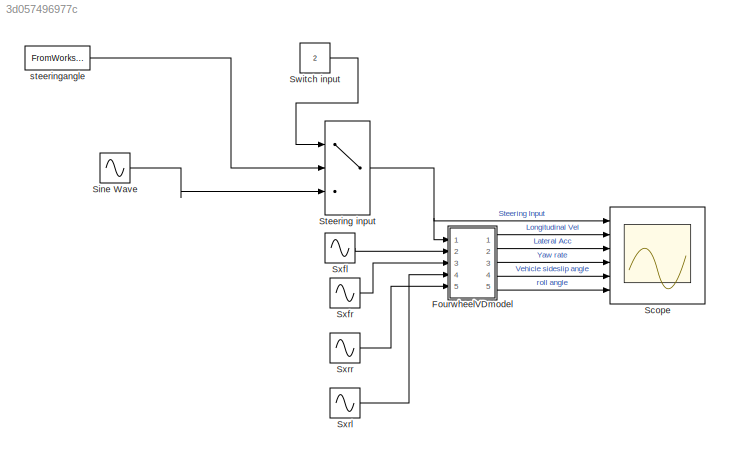
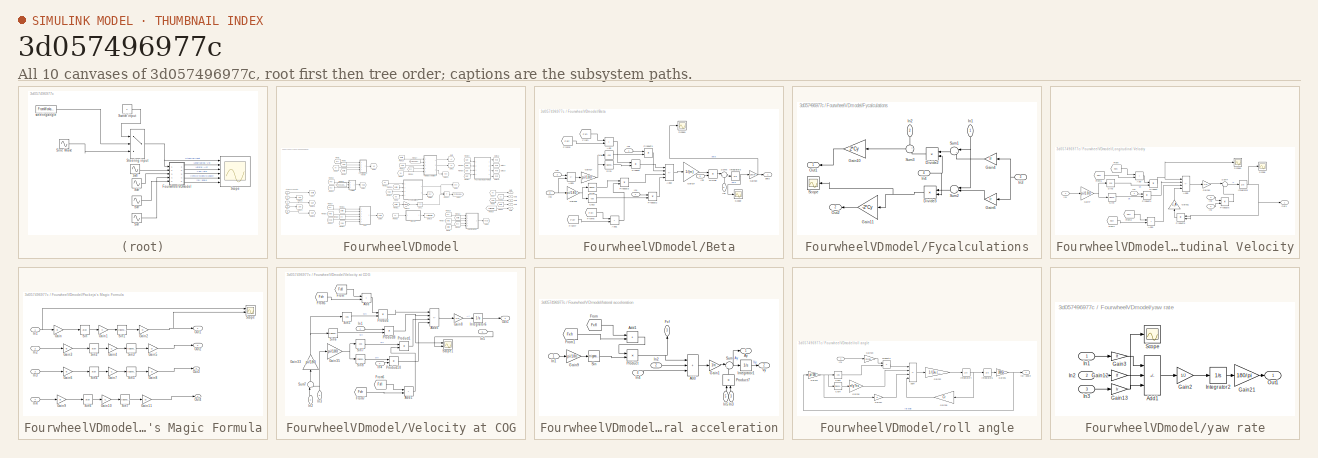
[diagram: thumbnail index - all 10 canvases of the model, root first then tree order]
MODEL slx_3d057496977c
KIND model
CONFIG AbsTol = auto
CONFIG EnableMultiTasking = off
CONFIG FixedStep = auto
CONFIG MaxStep = auto
CONFIG MinStep = auto
CONFIG RelTol = 1e-3
CONFIG SampleTimeConstraint = Unconstrained
CONFIG SolverName = VariableStepAuto
CONFIG StartTime = 0.0
CONFIG StopTime = 10
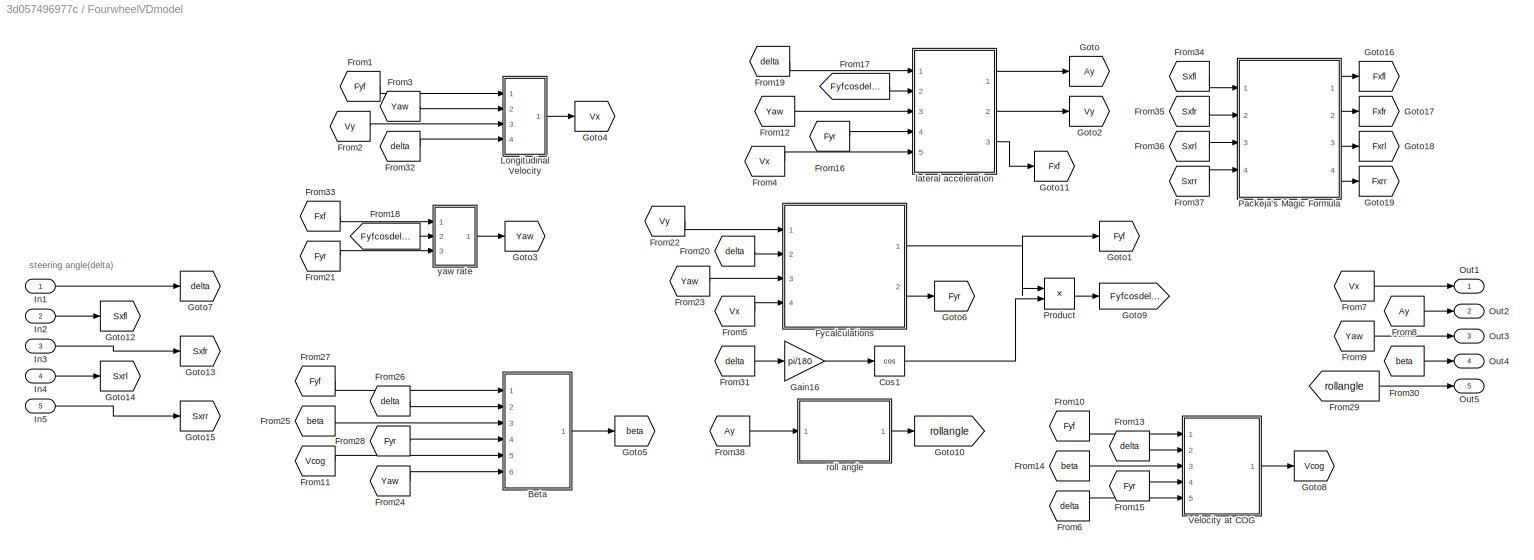
BLOCK [SubSystem] FourwheelVDmodel
  Ports = [5, 5]
  RequestExecContextInheritance = off
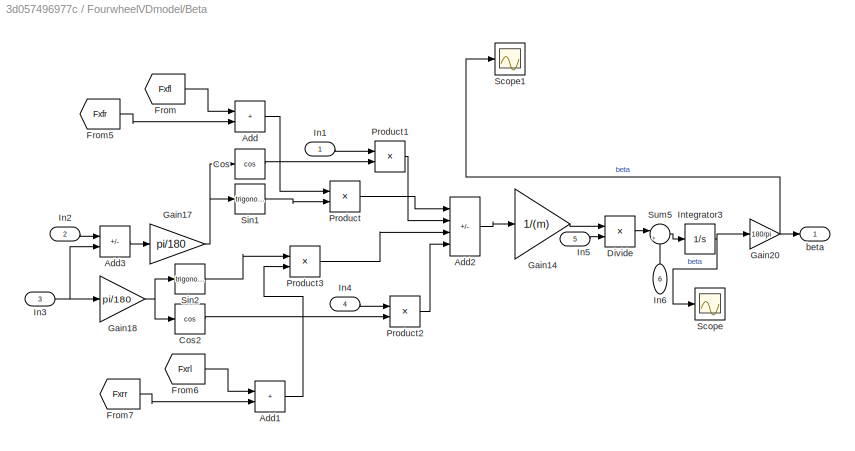
BLOCK [SubSystem] FourwheelVDmodel/Beta
  Ports = [6, 1]
  RequestExecContextInheritance = off
BLOCK [Sum] FourwheelVDmodel/Beta/Add
  IconShape = rectangular
  Ports = [2, 1]
BLOCK [Sum] FourwheelVDmodel/Beta/Add1
  IconShape = rectangular
  Ports = [2, 1]
BLOCK [Sum] FourwheelVDmodel/Beta/Add2
  IconShape = rectangular
  Inputs = ++-+
  Ports = [4, 1]
BLOCK [Sum] FourwheelVDmodel/Beta/Add3
  IconShape = rectangular
  Inputs = +-
  Ports = [2, 1]
BLOCK [Trigonometry] FourwheelVDmodel/Beta/Cos
  Operator = cos
  Ports = [1, 1]
BLOCK [Trigonometry] FourwheelVDmodel/Beta/Cos2
  Operator = cos
  Ports = [1, 1]
BLOCK [Product] FourwheelVDmodel/Beta/Divide
  Inputs = */
  Ports = [2, 1]
BLOCK [From] FourwheelVDmodel/Beta/From
  GotoTag = Fxfl
  TagVisibility = global
BLOCK [From] FourwheelVDmodel/Beta/From5
  GotoTag = Fxfr
  TagVisibility = global
BLOCK [From] FourwheelVDmodel/Beta/From6
  GotoTag = Fxrl
  TagVisibility = global
BLOCK [From] FourwheelVDmodel/Beta/From7
  GotoTag = Fxrr
  TagVisibility = global
BLOCK [Gain] FourwheelVDmodel/Beta/Gain14
  Gain = 1/(m)
BLOCK [Gain] FourwheelVDmodel/Beta/Gain17
  Gain = pi/180
BLOCK [Gain] FourwheelVDmodel/Beta/Gain18
  Gain = pi/180
BLOCK [Gain] FourwheelVDmodel/Beta/Gain20
  Gain = 180/pi
BLOCK [Inport] FourwheelVDmodel/Beta/In1
BLOCK [Inport] FourwheelVDmodel/Beta/In2
  Port = 2
BLOCK [Inport] FourwheelVDmodel/Beta/In3
  Port = 3
BLOCK [Inport] FourwheelVDmodel/Beta/In4
  Port = 4
BLOCK [Inport] FourwheelVDmodel/Beta/In5
  Port = 5
BLOCK [Inport] FourwheelVDmodel/Beta/In6
  NameLocation = right
  Port = 6
BLOCK [Integrator] FourwheelVDmodel/Beta/Integrator3
  Ports = [1, 1]
BLOCK [Product] FourwheelVDmodel/Beta/Product
  Ports = [2, 1]
BLOCK [Product] FourwheelVDmodel/Beta/Product1
  Ports = [2, 1]
BLOCK [Product] FourwheelVDmodel/Beta/Product2
  Ports = [2, 1]
BLOCK [Product] FourwheelVDmodel/Beta/Product3
  Ports = [2, 1]
BLOCK [Scope] FourwheelVDmodel/Beta/Scope
  Floating = off
  NumInputPorts = 1
  Ports = [1]
  ScopeSpecificationString = Simulink.scopes.TimeScopeBlockCfg('CurrentConfiguration', extmgr.ConfigurationSet(extmgr.Configuration('Core','General UI',true),extmgr.Configuration('Core','Source UI',true),extmgr.Configuration('Sources','WiredSimulink',true,'DataLoggingVariableName','ScopeData5'),extmgr.Configuration('Visuals','Time Domain',true,'SerializedDisplays',{struct('MinYLimReal','-1.06062','MaxYLimReal','0.73497','YLab...<+1690ch>
BLOCK [Scope] FourwheelVDmodel/Beta/Scope1
  Floating = off
  NumInputPorts = 1
  Ports = [1]
  ScopeSpecificationString = Simulink.scopes.TimeScopeBlockCfg('CurrentConfiguration', extmgr.ConfigurationSet(extmgr.Configuration('Core','General UI',true),extmgr.Configuration('Core','Source UI',true),extmgr.Configuration('Sources','WiredSimulink',true,'DataLoggingVariableName','ScopeData4'),extmgr.Configuration('Visuals','Time Domain',true,'SerializedDisplays',{struct('MinYLimReal','-12.23576','MaxYLimReal','13.15543','YL...<+1402ch>
BLOCK [Trigonometry] FourwheelVDmodel/Beta/Sin1
  Ports = [1, 1]
BLOCK [Trigonometry] FourwheelVDmodel/Beta/Sin2
  Ports = [1, 1]
BLOCK [Sum] FourwheelVDmodel/Beta/Sum5
  Inputs = |+-
  Ports = [2, 1]
BLOCK [Outport] FourwheelVDmodel/Beta/beta
BLOCK [Trigonometry] FourwheelVDmodel/Cos1
  Operator = cos
  Ports = [1, 1]
BLOCK [From] FourwheelVDmodel/From1
  GotoTag = Fyf
BLOCK [From] FourwheelVDmodel/From10
  GotoTag = Fyf
BLOCK [From] FourwheelVDmodel/From11
  GotoTag = Vcog
BLOCK [From] FourwheelVDmodel/From12
  GotoTag = Yaw
BLOCK [From] FourwheelVDmodel/From13
  GotoTag = delta
BLOCK [From] FourwheelVDmodel/From14
  GotoTag = beta
BLOCK [From] FourwheelVDmodel/From15
  GotoTag = Fyr
BLOCK [From] FourwheelVDmodel/From16
  GotoTag = Fyr
BLOCK [From] FourwheelVDmodel/From17
  GotoTag = Fyfcosdelta
  NameLocation = top
BLOCK [From] FourwheelVDmodel/From18
  GotoTag = Fyfcosdelta
  NameLocation = top
BLOCK [From] FourwheelVDmodel/From19
  GotoTag = delta
BLOCK [From] FourwheelVDmodel/From2
  GotoTag = Vy
BLOCK [From] FourwheelVDmodel/From20
  GotoTag = delta
BLOCK [From] FourwheelVDmodel/From21
  GotoTag = Fyr
BLOCK [From] FourwheelVDmodel/From22
  GotoTag = Vy
BLOCK [From] FourwheelVDmodel/From23
  GotoTag = Yaw
BLOCK [From] FourwheelVDmodel/From24
  GotoTag = Yaw
BLOCK [From] FourwheelVDmodel/From25
  GotoTag = beta
BLOCK [From] FourwheelVDmodel/From26
  GotoTag = delta
BLOCK [From] FourwheelVDmodel/From27
  GotoTag = Fyf
BLOCK [From] FourwheelVDmodel/From28
  GotoTag = Fyr
BLOCK [From] FourwheelVDmodel/From29
  GotoTag = rollangle
BLOCK [From] FourwheelVDmodel/From3
  GotoTag = Yaw
BLOCK [From] FourwheelVDmodel/From30
  GotoTag = beta
BLOCK [From] FourwheelVDmodel/From31
  GotoTag = delta
BLOCK [From] FourwheelVDmodel/From32
  GotoTag = delta
BLOCK [From] FourwheelVDmodel/From33
  GotoTag = Fxf
BLOCK [From] FourwheelVDmodel/From34
  GotoTag = Sxfl
  TagVisibility = global
BLOCK [From] FourwheelVDmodel/From35
  GotoTag = Sxfr
  TagVisibility = global
BLOCK [From] FourwheelVDmodel/From36
  GotoTag = Sxrl
  TagVisibility = global
BLOCK [From] FourwheelVDmodel/From37
  GotoTag = Sxrr
  TagVisibility = global
BLOCK [From] FourwheelVDmodel/From38
  GotoTag = Ay
BLOCK [From] FourwheelVDmodel/From4
  GotoTag = Vx
BLOCK [From] FourwheelVDmodel/From5
  GotoTag = Vx
BLOCK [From] FourwheelVDmodel/From6
  GotoTag = delta
BLOCK [From] FourwheelVDmodel/From7
  GotoTag = Vx
BLOCK [From] FourwheelVDmodel/From8
  GotoTag = Ay
BLOCK [From] FourwheelVDmodel/From9
  GotoTag = Yaw
BLOCK [SubSystem] FourwheelVDmodel/Fycalculations
  Ports = [4, 2]
  RequestExecContextInheritance = off
BLOCK [Product] FourwheelVDmodel/Fycalculations/Divide2
  Inputs = */
  NameLocation = top
  Ports = [2, 1]
BLOCK [Product] FourwheelVDmodel/Fycalculations/Divide3
  Inputs = */
  NameLocation = top
  Ports = [2, 1]
BLOCK [Gain] FourwheelVDmodel/Fycalculations/Gain10
  Gain = 2*Cy
  NameLocation = top
BLOCK [Gain] FourwheelVDmodel/Fycalculations/Gain11
  Gain = -2*Cy
  NameLocation = top
BLOCK [Gain] FourwheelVDmodel/Fycalculations/Gain4
  Gain = lf
  NameLocation = top
BLOCK [Gain] FourwheelVDmodel/Fycalculations/Gain6
  Gain = lr
  NameLocation = top
BLOCK [Inport] FourwheelVDmodel/Fycalculations/In1
  NameLocation = left
BLOCK [Inport] FourwheelVDmodel/Fycalculations/In2
  NameLocation = left
  Port = 2
BLOCK [Inport] FourwheelVDmodel/Fycalculations/In3
  Port = 3
BLOCK [Inport] FourwheelVDmodel/Fycalculations/In4
  Port = 4
BLOCK [Outport] FourwheelVDmodel/Fycalculations/Out1
BLOCK [Outport] FourwheelVDmodel/Fycalculations/Out2
  Port = 2
BLOCK [Scope] FourwheelVDmodel/Fycalculations/Scope
  Floating = off
  NameLocation = top
  NumInputPorts = 1
  Ports = [1]
  ScopeSpecificationString = Simulink.scopes.TimeScopeBlockCfg('CurrentConfiguration', extmgr.ConfigurationSet(extmgr.Configuration('Core','General UI',true),extmgr.Configuration('Core','Source UI',true),extmgr.Configuration('Sources','WiredSimulink',true,'DataLoggingVariableName','ScopeData3'),extmgr.Configuration('Visuals','Time Domain',true,'SerializedDisplays',{struct('MinYLimReal','-6.2168','MaxYLimReal','6.14245','YLabe...<+1397ch>
BLOCK [Sum] FourwheelVDmodel/Fycalculations/Sum1
  Inputs = |++
  NameLocation = top
  Ports = [2, 1]
BLOCK [Sum] FourwheelVDmodel/Fycalculations/Sum2
  Inputs = |+-
  NameLocation = top
  Ports = [2, 1]
BLOCK [Sum] FourwheelVDmodel/Fycalculations/Sum3
  Inputs = +-
  NameLocation = top
  Ports = [2, 1]
BLOCK [Gain] FourwheelVDmodel/Gain16
  Gain = pi/180
BLOCK [Goto] FourwheelVDmodel/Goto
  GotoTag = Ay
BLOCK [Goto] FourwheelVDmodel/Goto1
  GotoTag = Fyf
BLOCK [Goto] FourwheelVDmodel/Goto10
  GotoTag = rollangle
BLOCK [Goto] FourwheelVDmodel/Goto11
  GotoTag = Fxf
BLOCK [Goto] FourwheelVDmodel/Goto12
  GotoTag = Sxfl
  TagVisibility = global
BLOCK [Goto] FourwheelVDmodel/Goto13
  GotoTag = Sxfr
  TagVisibility = global
BLOCK [Goto] FourwheelVDmodel/Goto14
  GotoTag = Sxrl
  TagVisibility = global
BLOCK [Goto] FourwheelVDmodel/Goto15
  GotoTag = Sxrr
  TagVisibility = global
BLOCK [Goto] FourwheelVDmodel/Goto16
  GotoTag = Fxfl
  TagVisibility = global
BLOCK [Goto] FourwheelVDmodel/Goto17
  GotoTag = Fxfr
  TagVisibility = global
BLOCK [Goto] FourwheelVDmodel/Goto18
  GotoTag = Fxrl
  TagVisibility = global
BLOCK [Goto] FourwheelVDmodel/Goto19
  GotoTag = Fxrr
  TagVisibility = global
BLOCK [Goto] FourwheelVDmodel/Goto2
  GotoTag = Vy
BLOCK [Goto] FourwheelVDmodel/Goto3
  GotoTag = Yaw
BLOCK [Goto] FourwheelVDmodel/Goto4
  GotoTag = Vx
BLOCK [Goto] FourwheelVDmodel/Goto5
  GotoTag = beta
BLOCK [Goto] FourwheelVDmodel/Goto6
  GotoTag = Fyr
BLOCK [Goto] FourwheelVDmodel/Goto7
  GotoTag = delta
BLOCK [Goto] FourwheelVDmodel/Goto8
  GotoTag = Vcog
BLOCK [Goto] FourwheelVDmodel/Goto9
  GotoTag = Fyfcosdelta
BLOCK [Inport] FourwheelVDmodel/In1
BLOCK [Inport] FourwheelVDmodel/In2
  Port = 2
BLOCK [Inport] FourwheelVDmodel/In3
  Port = 3
BLOCK [Inport] FourwheelVDmodel/In4
  Port = 4
BLOCK [Inport] FourwheelVDmodel/In5
  Port = 5
BLOCK [SubSystem] FourwheelVDmodel/Longitudinal Velocity
  Ports = [4, 1]
  RequestExecContextInheritance = off
BLOCK [Sum] FourwheelVDmodel/Longitudinal Velocity/Add
  IconShape = rectangular
  Ports = [2, 1]
BLOCK [Sum] FourwheelVDmodel/Longitudinal Velocity/Add1
  IconShape = rectangular
  Ports = [2, 1]
BLOCK [Sum] FourwheelVDmodel/Longitudinal Velocity/Add5
  IconShape = rectangular
  Inputs = +-+-
  Ports = [4, 1]
BLOCK [From] FourwheelVDmodel/Longitudinal Velocity/From
  GotoTag = Fxfl
  TagVisibility = global
BLOCK [From] FourwheelVDmodel/Longitudinal Velocity/From1
  GotoTag = Fxfr
  TagVisibility = global
BLOCK [From] FourwheelVDmodel/Longitudinal Velocity/From2
  GotoTag = Fxrl
  TagVisibility = global
BLOCK [From] FourwheelVDmodel/Longitudinal Velocity/From7
  GotoTag = Fxrr
  TagVisibility = global
BLOCK [Gain] FourwheelVDmodel/Longitudinal Velocity/Gain30
  Gain = 1/m
BLOCK [Gain] FourwheelVDmodel/Longitudinal Velocity/Gain31
  Gain = C_A
  NameLocation = right
BLOCK [Gain] FourwheelVDmodel/Longitudinal Velocity/Gain7
  Gain = pi/180
BLOCK [Inport] FourwheelVDmodel/Longitudinal Velocity/In1
BLOCK [Inport] FourwheelVDmodel/Longitudinal Velocity/In2
  Port = 2
BLOCK [Inport] FourwheelVDmodel/Longitudinal Velocity/In3
  Port = 3
BLOCK [Inport] FourwheelVDmodel/Longitudinal Velocity/In4
  NameLocation = top
  Port = 4
BLOCK [Integrator] FourwheelVDmodel/Longitudinal Velocity/Integrator
  InitialCondition = 20
  Ports = [1, 1]
BLOCK [Outport] FourwheelVDmodel/Longitudinal Velocity/Out1
BLOCK [Product] FourwheelVDmodel/Longitudinal Velocity/Product
  Ports = [2, 1]
BLOCK [Product] FourwheelVDmodel/Longitudinal Velocity/Product4
  Ports = [2, 1]
BLOCK [Product] FourwheelVDmodel/Longitudinal Velocity/Product5
  Ports = [2, 1]
BLOCK [Product] FourwheelVDmodel/Longitudinal Velocity/Product6
  NameLocation = top
  Ports = [2, 1]
BLOCK [Scope] FourwheelVDmodel/Longitudinal Velocity/Scope
  Floating = off
  NumInputPorts = 1
  Ports = [1]
  ScopeSpecificationString = Simulink.scopes.TimeScopeBlockCfg('CurrentConfiguration', extmgr.ConfigurationSet(extmgr.Configuration('Core','General UI',true),extmgr.Configuration('Core','Source UI',true),extmgr.Configuration('Sources','WiredSimulink',true,'DataLoggingVariableName','ScopeData4'),extmgr.Configuration('Visuals','Time Domain',true,'SerializedDisplays',{struct('MinYLimReal','16.38612','MaxYLimReal','20.56971','YLa...<+1704ch>
BLOCK [Scope] FourwheelVDmodel/Longitudinal Velocity/Scope1
  Floating = off
  NumInputPorts = 1
  Ports = [1]
  ScopeSpecificationString = Simulink.scopes.TimeScopeBlockCfg('CurrentConfiguration', extmgr.ConfigurationSet(extmgr.Configuration('Core','General UI',true),extmgr.Configuration('Core','Source UI',true),extmgr.Configuration('Sources','WiredSimulink',true,'DataLoggingVariableName','ScopeData2'),extmgr.Configuration('Visuals','Time Domain',true,'SerializedDisplays',{struct('MinYLimReal','3622.75536','MaxYLimReal','4040.5486','...<+1417ch>
BLOCK [Trigonometry] FourwheelVDmodel/Longitudinal Velocity/Sin3
  Operator = cos
  Ports = [1, 1]
BLOCK [Trigonometry] FourwheelVDmodel/Longitudinal Velocity/Sin4
  Ports = [1, 1]
BLOCK [Sum] FourwheelVDmodel/Longitudinal Velocity/Sum4
  Inputs = |++
  Ports = [2, 1]
BLOCK [Outport] FourwheelVDmodel/Out1
BLOCK [Outport] FourwheelVDmodel/Out2
  Port = 2
BLOCK [Outport] FourwheelVDmodel/Out3
  Port = 3
BLOCK [Outport] FourwheelVDmodel/Out4
  Port = 4
BLOCK [Outport] FourwheelVDmodel/Out5
  Port = 5
BLOCK [SubSystem] FourwheelVDmodel/Packeja's Magic Formula
  Ports = [4, 4]
  RequestExecContextInheritance = off
BLOCK [Gain] FourwheelVDmodel/Packeja's Magic Formula/Gain
  Gain = B
BLOCK [Gain] FourwheelVDmodel/Packeja's Magic Formula/Gain1
  Gain = C
BLOCK [Gain] FourwheelVDmodel/Packeja's Magic Formula/Gain10
  Gain = C
BLOCK [Gain] FourwheelVDmodel/Packeja's Magic Formula/Gain11
  Gain = D
BLOCK [Gain] FourwheelVDmodel/Packeja's Magic Formula/Gain2
  Gain = D
BLOCK [Gain] FourwheelVDmodel/Packeja's Magic Formula/Gain3
  Gain = B
BLOCK [Gain] FourwheelVDmodel/Packeja's Magic Formula/Gain4
  Gain = C
BLOCK [Gain] FourwheelVDmodel/Packeja's Magic Formula/Gain5
  Gain = D
BLOCK [Gain] FourwheelVDmodel/Packeja's Magic Formula/Gain6
  Gain = B
BLOCK [Gain] FourwheelVDmodel/Packeja's Magic Formula/Gain7
  Gain = C
BLOCK [Gain] FourwheelVDmodel/Packeja's Magic Formula/Gain8
  Gain = D
BLOCK [Gain] FourwheelVDmodel/Packeja's Magic Formula/Gain9
  Gain = B
BLOCK [Inport] FourwheelVDmodel/Packeja's Magic Formula/In1
BLOCK [Inport] FourwheelVDmodel/Packeja's Magic Formula/In2
  Port = 2
BLOCK [Inport] FourwheelVDmodel/Packeja's Magic Formula/In3
  Port = 3
BLOCK [Inport] FourwheelVDmodel/Packeja's Magic Formula/In4
  Port = 4
BLOCK [Outport] FourwheelVDmodel/Packeja's Magic Formula/Out1
BLOCK [Outport] FourwheelVDmodel/Packeja's Magic Formula/Out2
  Port = 2
BLOCK [Outport] FourwheelVDmodel/Packeja's Magic Formula/Out3
  Port = 3
BLOCK [Outport] FourwheelVDmodel/Packeja's Magic Formula/Out4
  Port = 4
BLOCK [Scope] FourwheelVDmodel/Packeja's Magic Formula/Scope
  Floating = off
  NumInputPorts = 2
  Ports = [2]
  ScopeSpecificationString = Simulink.scopes.TimeScopeBlockCfg('CurrentConfiguration', extmgr.ConfigurationSet(extmgr.Configuration('Core','General UI',true),extmgr.Configuration('Core','Source UI',true),extmgr.Configuration('Sources','WiredSimulink',true,'DataLoggingVariableName','ScopeData2'),extmgr.Configuration('Visuals','Time Domain',true,'SerializedDisplays',{struct('MinYLimReal','0.0875','MaxYLimReal','0.2125','YLabelR...<+2033ch>
BLOCK [Trigonometry] FourwheelVDmodel/Packeja's Magic Formula/Sin
  Operator = atan
  Ports = [1, 1]
BLOCK [Trigonometry] FourwheelVDmodel/Packeja's Magic Formula/Sin1
  Ports = [1, 1]
BLOCK [Trigonometry] FourwheelVDmodel/Packeja's Magic Formula/Sin2
  Operator = atan
  Ports = [1, 1]
BLOCK [Trigonometry] FourwheelVDmodel/Packeja's Magic Formula/Sin3
  Ports = [1, 1]
BLOCK [Trigonometry] FourwheelVDmodel/Packeja's Magic Formula/Sin4
  Operator = atan
  Ports = [1, 1]
BLOCK [Trigonometry] FourwheelVDmodel/Packeja's Magic Formula/Sin5
  Ports = [1, 1]
BLOCK [Trigonometry] FourwheelVDmodel/Packeja's Magic Formula/Sin6
  Operator = atan
  Ports = [1, 1]
BLOCK [Trigonometry] FourwheelVDmodel/Packeja's Magic Formula/Sin7
  Ports = [1, 1]
BLOCK [Product] FourwheelVDmodel/Product
  Ports = [2, 1]
BLOCK [SubSystem] FourwheelVDmodel/Velocity at COG
  Ports = [5, 1]
  RequestExecContextInheritance = off
BLOCK [Sum] FourwheelVDmodel/Velocity at COG/Add
  IconShape = rectangular
  Ports = [2, 1]
BLOCK [Sum] FourwheelVDmodel/Velocity at COG/Add1
  IconShape = rectangular
  Ports = [2, 1]
BLOCK [Sum] FourwheelVDmodel/Velocity at COG/Add6
  IconShape = rectangular
  Inputs = +-++
  Ports = [4, 1]
BLOCK [From] FourwheelVDmodel/Velocity at COG/From
  GotoTag = Fxfl
  TagVisibility = global
BLOCK [From] FourwheelVDmodel/Velocity at COG/From5
  GotoTag = Fxfr
  TagVisibility = global
BLOCK [From] FourwheelVDmodel/Velocity at COG/From6
  GotoTag = Fxfl
  TagVisibility = global
BLOCK [From] FourwheelVDmodel/Velocity at COG/From7
  GotoTag = Fxfr
  TagVisibility = global
BLOCK [Gain] FourwheelVDmodel/Velocity at COG/Gain33
  Gain = pi/180
  NameLocation = right
BLOCK [Gain] FourwheelVDmodel/Velocity at COG/Gain35
  Gain = pi/180
BLOCK [Gain] FourwheelVDmodel/Velocity at COG/Gain8
  Gain = 1/m
BLOCK [Inport] FourwheelVDmodel/Velocity at COG/In1
BLOCK [Inport] FourwheelVDmodel/Velocity at COG/In2
  NameLocation = right
  Port = 2
BLOCK [Inport] FourwheelVDmodel/Velocity at COG/In3
  NameLocation = right
  Port = 3
BLOCK [Inport] FourwheelVDmodel/Velocity at COG/In4
  Port = 4
BLOCK [Inport] FourwheelVDmodel/Velocity at COG/In5
  Port = 5
BLOCK [Integrator] FourwheelVDmodel/Velocity at COG/Integrator6
  InitialCondition = 20
  Ports = [1, 1]
BLOCK [Outport] FourwheelVDmodel/Velocity at COG/Out1
BLOCK [Product] FourwheelVDmodel/Velocity at COG/Product
  Ports = [2, 1]
BLOCK [Product] FourwheelVDmodel/Velocity at COG/Product1
  Ports = [2, 1]
BLOCK [Product] FourwheelVDmodel/Velocity at COG/Product10
  Ports = [2, 1]
BLOCK [Product] FourwheelVDmodel/Velocity at COG/Product8
  Ports = [2, 1]
BLOCK [Scope] FourwheelVDmodel/Velocity at COG/Scope1
  Floating = off
  NumInputPorts = 2
  Ports = [2]
  ScopeSpecificationString = Simulink.scopes.TimeScopeBlockCfg('CurrentConfiguration', extmgr.ConfigurationSet(extmgr.Configuration('Core','General UI',true),extmgr.Configuration('Core','Source UI',true),extmgr.Configuration('Sources','WiredSimulink',true,'DataLoggingVariableName','ScopeData1'),extmgr.Configuration('Visuals','Time Domain',true,'SerializedDisplays',{struct('MinYLimReal','-102134.26176','MaxYLimReal','192009.99...<+2050ch>
BLOCK [Trigonometry] FourwheelVDmodel/Velocity at COG/Sin5
  Operator = cos
  Ports = [1, 1]
BLOCK [Trigonometry] FourwheelVDmodel/Velocity at COG/Sin6
  Ports = [1, 1]
BLOCK [Trigonometry] FourwheelVDmodel/Velocity at COG/Sin7
  Operator = cos
  Ports = [1, 1]
BLOCK [Trigonometry] FourwheelVDmodel/Velocity at COG/Sin8
  Ports = [1, 1]
BLOCK [Sum] FourwheelVDmodel/Velocity at COG/Sum7
  Inputs = |+-
  NameLocation = right
  Ports = [2, 1]
BLOCK [SubSystem] FourwheelVDmodel/lateral acceleration
  Ports = [5, 3]
  RequestExecContextInheritance = off
BLOCK [Sum] FourwheelVDmodel/lateral acceleration/Add
  IconShape = rectangular
  Inputs = +++
  Ports = [3, 1]
BLOCK [Sum] FourwheelVDmodel/lateral acceleration/Add1
  IconShape = rectangular
  Ports = [2, 1]
BLOCK [Outport] FourwheelVDmodel/lateral acceleration/Ay
BLOCK [From] FourwheelVDmodel/lateral acceleration/From
  GotoTag = Fxfl
  TagVisibility = global
BLOCK [From] FourwheelVDmodel/lateral acceleration/From1
  GotoTag = Fxfr
  TagVisibility = global
BLOCK [Outport] FourwheelVDmodel/lateral acceleration/Fxf
  NameLocation = right
  Port = 3
BLOCK [Gain] FourwheelVDmodel/lateral acceleration/Gain1
  Gain = 1/m
BLOCK [Gain] FourwheelVDmodel/lateral acceleration/Gain9
  Gain = pi/180
BLOCK [Inport] FourwheelVDmodel/lateral acceleration/In1
BLOCK [Inport] FourwheelVDmodel/lateral acceleration/In2
  Port = 2
BLOCK [Inport] FourwheelVDmodel/lateral acceleration/In3
  NameLocation = right
  Port = 3
BLOCK [Inport] FourwheelVDmodel/lateral acceleration/In4
  Port = 4
BLOCK [Inport] FourwheelVDmodel/lateral acceleration/In5
  NameLocation = right
  Port = 5
BLOCK [Integrator] FourwheelVDmodel/lateral acceleration/Integrator1
  InitialCondition = 0.5
  Ports = [1, 1]
BLOCK [Product] FourwheelVDmodel/lateral acceleration/Product
  Ports = [2, 1]
BLOCK [Product] FourwheelVDmodel/lateral acceleration/Product7
  NameLocation = right
  Ports = [2, 1]
BLOCK [Trigonometry] FourwheelVDmodel/lateral acceleration/Sin
  Ports = [1, 1]
BLOCK [Sum] FourwheelVDmodel/lateral acceleration/Sum
  Inputs = |+-
  Ports = [2, 1]
BLOCK [Outport] FourwheelVDmodel/lateral acceleration/Vy
  Port = 2
BLOCK [SubSystem] FourwheelVDmodel/roll angle
  Ports = [1, 1]
  RequestExecContextInheritance = off
BLOCK [Sum] FourwheelVDmodel/roll angle/Add4
  IconShape = rectangular
  Inputs = ++--
  Ports = [4, 1]
BLOCK [Trigonometry] FourwheelVDmodel/roll angle/Cos3
  Operator = cos
  Ports = [1, 1]
BLOCK [Trigonometry] FourwheelVDmodel/roll angle/Cos4
  Ports = [1, 1]
BLOCK [Gain] FourwheelVDmodel/roll angle/Gain22
  Gain = 1/(Jx+(m*hs^2))
BLOCK [Gain] FourwheelVDmodel/roll angle/Gain23
  Gain = m*hs
BLOCK [Gain] FourwheelVDmodel/roll angle/Gain24
  Gain = pi/180
BLOCK [Gain] FourwheelVDmodel/roll angle/Gain25
  Gain = 180/pi
BLOCK [Gain] FourwheelVDmodel/roll angle/Gain26
  Gain = m*g*hs
BLOCK [Gain] FourwheelVDmodel/roll angle/Gain27
  Gain = K
BLOCK [Gain] FourwheelVDmodel/roll angle/Gain28
  Gain = Cr
  NameLocation = top
BLOCK [Inport] FourwheelVDmodel/roll angle/In1
BLOCK [Integrator] FourwheelVDmodel/roll angle/Integrator4
  Ports = [1, 1]
BLOCK [Integrator] FourwheelVDmodel/roll angle/Integrator5
  Ports = [1, 1]
BLOCK [Product] FourwheelVDmodel/roll angle/Product3
  Ports = [2, 1]
BLOCK [Outport] FourwheelVDmodel/roll angle/roll angle
BLOCK [SubSystem] FourwheelVDmodel/yaw rate
  Ports = [3, 1]
  RequestExecContextInheritance = off
BLOCK [Sum] FourwheelVDmodel/yaw rate/Add1
  IconShape = rectangular
  Inputs = ++-
  Ports = [3, 1]
BLOCK [Gain] FourwheelVDmodel/yaw rate/Gain12
  Gain = lf
BLOCK [Gain] FourwheelVDmodel/yaw rate/Gain13
  Gain = lr
BLOCK [Gain] FourwheelVDmodel/yaw rate/Gain2
  Gain = 1/J
BLOCK [Gain] FourwheelVDmodel/yaw rate/Gain21
  Gain = 180/pi
BLOCK [Gain] FourwheelVDmodel/yaw rate/Gain3
  Gain = lf
BLOCK [Inport] FourwheelVDmodel/yaw rate/In1
BLOCK [Inport] FourwheelVDmodel/yaw rate/In2
  Port = 2
BLOCK [Inport] FourwheelVDmodel/yaw rate/In3
  Port = 3
BLOCK [Integrator] FourwheelVDmodel/yaw rate/Integrator2
  Ports = [1, 1]
BLOCK [Outport] FourwheelVDmodel/yaw rate/Out1
BLOCK [Scope] FourwheelVDmodel/yaw rate/Scope
  Floating = off
  NumInputPorts = 1
  Ports = [1]
  ScopeSpecificationString = Simulink.scopes.TimeScopeBlockCfg('CurrentConfiguration', extmgr.ConfigurationSet(extmgr.Configuration('Core','General UI',true),extmgr.Configuration('Core','Source UI',true),extmgr.Configuration('Sources','WiredSimulink',true,'DataLoggingVariableName','ScopeData3'),extmgr.Configuration('Visuals','Time Domain',true,'SerializedDisplays',{struct('MinYLimReal','-1750599.61389','MaxYLimReal','1771788....<+1411ch>
BLOCK [Scope] Scope
  Floating = off
  NumInputPorts = 6
  Ports = [6]
  ScopeSpecificationString = Simulink.scopes.TimeScopeBlockCfg('CurrentConfiguration', extmgr.ConfigurationSet(extmgr.Configuration('Core','General UI',true),extmgr.Configuration('Core','Source UI',true),extmgr.Configuration('Sources','WiredSimulink',true,'DataLoggingVariableName','ScopeData1'),extmgr.Configuration('Visuals','Time Domain',true,'SerializedDisplays',{struct('MinYLimReal','-12.5','MaxYLimReal','12.49998','YLabel...<+4950ch>
BLOCK [Sin] Sine Wave
  Amplitude = 10
  Frequency = 2*pi
  Ports = [0, 1]
  SampleTime = 0
BLOCK [MultiPortSwitch] Steering input
  InputSameDT = off
  Inputs = 2
  Ports = [3, 1]
  SaturateOnIntegerOverflow = off
BLOCK [Constant] Switch input
  Value = 2
BLOCK [Sin] Sxfl
  Amplitude = 0.5e-1
  Bias = 1.5e-1
  Frequency = 5*pi
  Ports = [0, 1]
  SampleTime = 0
BLOCK [Sin] Sxfr
  Amplitude = 0.5e-1
  Bias = 1.5e-1
  Frequency = 5*pi
  Ports = [0, 1]
  SampleTime = 0
BLOCK [Sin] Sxrl
  Amplitude = 0.5e-1
  Bias = 1.5e-1
  Frequency = 5*pi
  Ports = [0, 1]
  SampleTime = 0
BLOCK [Sin] Sxrr
  Amplitude = 0.5e-1
  Bias = 1.5e-1
  Frequency = 5*pi
  Ports = [0, 1]
  SampleTime = 0
BLOCK [FromWorkspace] steeringangle
  VariableName = delta
ANNOTATION FourwheelVDmodel: steering angle(delta)
LINE FourwheelVDmodel/Beta/Add1:1 -> FourwheelVDmodel/Beta/Product3:2
LINE FourwheelVDmodel/Beta/Add2:1 -> FourwheelVDmodel/Beta/Gain14:1
LINE FourwheelVDmodel/Beta/Add3:1 -> FourwheelVDmodel/Beta/Gain17:1
LINE FourwheelVDmodel/Beta/Add:1 -> FourwheelVDmodel/Beta/Product:1
LINE FourwheelVDmodel/Beta/Cos2:1 -> FourwheelVDmodel/Beta/Product2:2
LINE FourwheelVDmodel/Beta/Cos:1 -> FourwheelVDmodel/Beta/Product1:2
LINE FourwheelVDmodel/Beta/Divide:1 -> FourwheelVDmodel/Beta/Sum5:1
LINE FourwheelVDmodel/Beta/From5:1 -> FourwheelVDmodel/Beta/Add:2
LINE FourwheelVDmodel/Beta/From6:1 -> FourwheelVDmodel/Beta/Add1:1
LINE FourwheelVDmodel/Beta/From7:1 -> FourwheelVDmodel/Beta/Add1:2
LINE FourwheelVDmodel/Beta/From:1 -> FourwheelVDmodel/Beta/Add:1
LINE FourwheelVDmodel/Beta/Gain14:1 -> FourwheelVDmodel/Beta/Divide:1
NET FourwheelVDmodel/Beta/Gain17:1 -> FourwheelVDmodel/Beta/Cos:1, FourwheelVDmodel/Beta/Sin1:1
NET FourwheelVDmodel/Beta/Gain18:1 -> FourwheelVDmodel/Beta/Cos2:1, FourwheelVDmodel/Beta/Sin2:1
NET FourwheelVDmodel/Beta/Gain20:1 -> FourwheelVDmodel/Beta/Scope1:1, FourwheelVDmodel/Beta/beta:1
LINE FourwheelVDmodel/Beta/In1:1 -> FourwheelVDmodel/Beta/Product1:1
LINE FourwheelVDmodel/Beta/In2:1 -> FourwheelVDmodel/Beta/Add3:1
NET FourwheelVDmodel/Beta/In3:1 -> FourwheelVDmodel/Beta/Add3:2, FourwheelVDmodel/Beta/Gain18:1
LINE FourwheelVDmodel/Beta/In4:1 -> FourwheelVDmodel/Beta/Product2:1
LINE FourwheelVDmodel/Beta/In5:1 -> FourwheelVDmodel/Beta/Divide:2
LINE FourwheelVDmodel/Beta/In6:1 -> FourwheelVDmodel/Beta/Sum5:2
NET FourwheelVDmodel/Beta/Integrator3:1 -> FourwheelVDmodel/Beta/Gain20:1, FourwheelVDmodel/Beta/Scope:1
LINE FourwheelVDmodel/Beta/Product1:1 -> FourwheelVDmodel/Beta/Add2:2
LINE FourwheelVDmodel/Beta/Product2:1 -> FourwheelVDmodel/Beta/Add2:4
LINE FourwheelVDmodel/Beta/Product3:1 -> FourwheelVDmodel/Beta/Add2:3
LINE FourwheelVDmodel/Beta/Product:1 -> FourwheelVDmodel/Beta/Add2:1
LINE FourwheelVDmodel/Beta/Sin1:1 -> FourwheelVDmodel/Beta/Product:2
LINE FourwheelVDmodel/Beta/Sin2:1 -> FourwheelVDmodel/Beta/Product3:1
LINE FourwheelVDmodel/Beta/Sum5:1 -> FourwheelVDmodel/Beta/Integrator3:1
LINE FourwheelVDmodel/Beta:1 -> FourwheelVDmodel/Goto5:1
LINE FourwheelVDmodel/Cos1:1 -> FourwheelVDmodel/Product:2
LINE FourwheelVDmodel/From10:1 -> FourwheelVDmodel/Velocity at COG:1
LINE FourwheelVDmodel/From11:1 -> FourwheelVDmodel/Beta:5
LINE FourwheelVDmodel/From12:1 -> FourwheelVDmodel/lateral acceleration:3
LINE FourwheelVDmodel/From13:1 -> FourwheelVDmodel/Velocity at COG:2
LINE FourwheelVDmodel/From14:1 -> FourwheelVDmodel/Velocity at COG:3
LINE FourwheelVDmodel/From15:1 -> FourwheelVDmodel/Velocity at COG:4
LINE FourwheelVDmodel/From16:1 -> FourwheelVDmodel/lateral acceleration:4
LINE FourwheelVDmodel/From17:1 -> FourwheelVDmodel/lateral acceleration:2
LINE FourwheelVDmodel/From18:1 -> FourwheelVDmodel/yaw rate:2
LINE FourwheelVDmodel/From19:1 -> FourwheelVDmodel/lateral acceleration:1
LINE FourwheelVDmodel/From1:1 -> FourwheelVDmodel/Longitudinal Velocity:1
LINE FourwheelVDmodel/From20:1 -> FourwheelVDmodel/Fycalculations:2
LINE FourwheelVDmodel/From21:1 -> FourwheelVDmodel/yaw rate:3
LINE FourwheelVDmodel/From22:1 -> FourwheelVDmodel/Fycalculations:1
LINE FourwheelVDmodel/From23:1 -> FourwheelVDmodel/Fycalculations:3
LINE FourwheelVDmodel/From24:1 -> FourwheelVDmodel/Beta:6
LINE FourwheelVDmodel/From25:1 -> FourwheelVDmodel/Beta:3
LINE FourwheelVDmodel/From26:1 -> FourwheelVDmodel/Beta:2
LINE FourwheelVDmodel/From27:1 -> FourwheelVDmodel/Beta:1
LINE FourwheelVDmodel/From28:1 -> FourwheelVDmodel/Beta:4
LINE FourwheelVDmodel/From29:1 -> FourwheelVDmodel/Out5:1
LINE FourwheelVDmodel/From2:1 -> FourwheelVDmodel/Longitudinal Velocity:3
LINE FourwheelVDmodel/From30:1 -> FourwheelVDmodel/Out4:1
LINE FourwheelVDmodel/From31:1 -> FourwheelVDmodel/Gain16:1
LINE FourwheelVDmodel/From32:1 -> FourwheelVDmodel/Longitudinal Velocity:4
LINE FourwheelVDmodel/From33:1 -> FourwheelVDmodel/yaw rate:1
LINE FourwheelVDmodel/From34:1 -> FourwheelVDmodel/Packeja's Magic Formula:1
LINE FourwheelVDmodel/From35:1 -> FourwheelVDmodel/Packeja's Magic Formula:2
LINE FourwheelVDmodel/From36:1 -> FourwheelVDmodel/Packeja's Magic Formula:3
LINE FourwheelVDmodel/From37:1 -> FourwheelVDmodel/Packeja's Magic Formula:4
LINE FourwheelVDmodel/From38:1 -> FourwheelVDmodel/roll angle:1
LINE FourwheelVDmodel/From3:1 -> FourwheelVDmodel/Longitudinal Velocity:2
LINE FourwheelVDmodel/From4:1 -> FourwheelVDmodel/lateral acceleration:5
LINE FourwheelVDmodel/From5:1 -> FourwheelVDmodel/Fycalculations:4
LINE FourwheelVDmodel/From6:1 -> FourwheelVDmodel/Velocity at COG:5
LINE FourwheelVDmodel/From7:1 -> FourwheelVDmodel/Out1:1
LINE FourwheelVDmodel/From8:1 -> FourwheelVDmodel/Out2:1
LINE FourwheelVDmodel/From9:1 -> FourwheelVDmodel/Out3:1
LINE FourwheelVDmodel/Fycalculations/Divide2:1 -> FourwheelVDmodel/Fycalculations/Sum3:2
NET FourwheelVDmodel/Fycalculations/Divide3:1 -> FourwheelVDmodel/Fycalculations/Gain11:1, FourwheelVDmodel/Fycalculations/Scope:1
LINE FourwheelVDmodel/Fycalculations/Gain10:1 -> FourwheelVDmodel/Fycalculations/Out1:1
LINE FourwheelVDmodel/Fycalculations/Gain11:1 -> FourwheelVDmodel/Fycalculations/Out2:1
LINE FourwheelVDmodel/Fycalculations/Gain4:1 -> FourwheelVDmodel/Fycalculations/Sum1:2
LINE FourwheelVDmodel/Fycalculations/Gain6:1 -> FourwheelVDmodel/Fycalculations/Sum2:2
NET FourwheelVDmodel/Fycalculations/In1:1 -> FourwheelVDmodel/Fycalculations/Sum1:1, FourwheelVDmodel/Fycalculations/Sum2:1
LINE FourwheelVDmodel/Fycalculations/In2:1 -> FourwheelVDmodel/Fycalculations/Sum3:1
NET FourwheelVDmodel/Fycalculations/In3:1 -> FourwheelVDmodel/Fycalculations/Gain4:1, FourwheelVDmodel/Fycalculations/Gain6:1
NET FourwheelVDmodel/Fycalculations/In4:1 -> FourwheelVDmodel/Fycalculations/Divide2:2, FourwheelVDmodel/Fycalculations/Divide3:2
LINE FourwheelVDmodel/Fycalculations/Sum1:1 -> FourwheelVDmodel/Fycalculations/Divide2:1
LINE FourwheelVDmodel/Fycalculations/Sum2:1 -> FourwheelVDmodel/Fycalculations/Divide3:1
LINE FourwheelVDmodel/Fycalculations/Sum3:1 -> FourwheelVDmodel/Fycalculations/Gain10:1
NET FourwheelVDmodel/Fycalculations:1 -> FourwheelVDmodel/Goto1:1, FourwheelVDmodel/Product:1
LINE FourwheelVDmodel/Fycalculations:2 -> FourwheelVDmodel/Goto6:1
LINE FourwheelVDmodel/Gain16:1 -> FourwheelVDmodel/Cos1:1
LINE FourwheelVDmodel/In1:1 -> FourwheelVDmodel/Goto7:1
LINE FourwheelVDmodel/In2:1 -> FourwheelVDmodel/Goto12:1
LINE FourwheelVDmodel/In3:1 -> FourwheelVDmodel/Goto13:1
LINE FourwheelVDmodel/In4:1 -> FourwheelVDmodel/Goto14:1
LINE FourwheelVDmodel/In5:1 -> FourwheelVDmodel/Goto15:1
LINE FourwheelVDmodel/Longitudinal Velocity/Add1:1 -> FourwheelVDmodel/Longitudinal Velocity/Add5:3
LINE FourwheelVDmodel/Longitudinal Velocity/Add5:1 -> FourwheelVDmodel/Longitudinal Velocity/Gain30:1
LINE FourwheelVDmodel/Longitudinal Velocity/Add:1 -> FourwheelVDmodel/Longitudinal Velocity/Product:1
LINE FourwheelVDmodel/Longitudinal Velocity/From1:1 -> FourwheelVDmodel/Longitudinal Velocity/Add:2
LINE FourwheelVDmodel/Longitudinal Velocity/From2:1 -> FourwheelVDmodel/Longitudinal Velocity/Add1:1
LINE FourwheelVDmodel/Longitudinal Velocity/From7:1 -> FourwheelVDmodel/Longitudinal Velocity/Add1:2
LINE FourwheelVDmodel/Longitudinal Velocity/From:1 -> FourwheelVDmodel/Longitudinal Velocity/Add:1
LINE FourwheelVDmodel/Longitudinal Velocity/Gain30:1 -> FourwheelVDmodel/Longitudinal Velocity/Sum4:1
LINE FourwheelVDmodel/Longitudinal Velocity/Gain31:1 -> FourwheelVDmodel/Longitudinal Velocity/Add5:4
NET FourwheelVDmodel/Longitudinal Velocity/Gain7:1 -> FourwheelVDmodel/Longitudinal Velocity/Sin3:1, FourwheelVDmodel/Longitudinal Velocity/Sin4:1
LINE FourwheelVDmodel/Longitudinal Velocity/In1:1 -> FourwheelVDmodel/Longitudinal Velocity/Product4:1
LINE FourwheelVDmodel/Longitudinal Velocity/In2:1 -> FourwheelVDmodel/Longitudinal Velocity/Product5:2
LINE FourwheelVDmodel/Longitudinal Velocity/In3:1 -> FourwheelVDmodel/Longitudinal Velocity/Product5:1
LINE FourwheelVDmodel/Longitudinal Velocity/In4:1 -> FourwheelVDmodel/Longitudinal Velocity/Gain7:1
NET FourwheelVDmodel/Longitudinal Velocity/Integrator:1 -> FourwheelVDmodel/Longitudinal Velocity/Out1:1, FourwheelVDmodel/Longitudinal Velocity/Product6:1, FourwheelVDmodel/Longitudinal Velocity/Product6:2, FourwheelVDmodel/Longitudinal Velocity/Scope:1
LINE FourwheelVDmodel/Longitudinal Velocity/Product4:1 -> FourwheelVDmodel/Longitudinal Velocity/Add5:2
LINE FourwheelVDmodel/Longitudinal Velocity/Product5:1 -> FourwheelVDmodel/Longitudinal Velocity/Sum4:2
LINE FourwheelVDmodel/Longitudinal Velocity/Product6:1 -> FourwheelVDmodel/Longitudinal Velocity/Gain31:1
NET FourwheelVDmodel/Longitudinal Velocity/Product:1 -> FourwheelVDmodel/Longitudinal Velocity/Add5:1, FourwheelVDmodel/Longitudinal Velocity/Scope1:1
LINE FourwheelVDmodel/Longitudinal Velocity/Sin3:1 -> FourwheelVDmodel/Longitudinal Velocity/Product:2
LINE FourwheelVDmodel/Longitudinal Velocity/Sin4:1 -> FourwheelVDmodel/Longitudinal Velocity/Product4:2
LINE FourwheelVDmodel/Longitudinal Velocity/Sum4:1 -> FourwheelVDmodel/Longitudinal Velocity/Integrator:1
LINE FourwheelVDmodel/Longitudinal Velocity:1 -> FourwheelVDmodel/Goto4:1
LINE FourwheelVDmodel/Packeja's Magic Formula/Gain10:1 -> FourwheelVDmodel/Packeja's Magic Formula/Sin7:1
LINE FourwheelVDmodel/Packeja's Magic Formula/Gain11:1 -> FourwheelVDmodel/Packeja's Magic Formula/Out4:1
LINE FourwheelVDmodel/Packeja's Magic Formula/Gain1:1 -> FourwheelVDmodel/Packeja's Magic Formula/Sin1:1
NET FourwheelVDmodel/Packeja's Magic Formula/Gain2:1 -> FourwheelVDmodel/Packeja's Magic Formula/Out1:1, FourwheelVDmodel/Packeja's Magic Formula/Scope:2
LINE FourwheelVDmodel/Packeja's Magic Formula/Gain3:1 -> FourwheelVDmodel/Packeja's Magic Formula/Sin2:1
LINE FourwheelVDmodel/Packeja's Magic Formula/Gain4:1 -> FourwheelVDmodel/Packeja's Magic Formula/Sin3:1
LINE FourwheelVDmodel/Packeja's Magic Formula/Gain5:1 -> FourwheelVDmodel/Packeja's Magic Formula/Out2:1
LINE FourwheelVDmodel/Packeja's Magic Formula/Gain6:1 -> FourwheelVDmodel/Packeja's Magic Formula/Sin4:1
LINE FourwheelVDmodel/Packeja's Magic Formula/Gain7:1 -> FourwheelVDmodel/Packeja's Magic Formula/Sin5:1
LINE FourwheelVDmodel/Packeja's Magic Formula/Gain8:1 -> FourwheelVDmodel/Packeja's Magic Formula/Out3:1
LINE FourwheelVDmodel/Packeja's Magic Formula/Gain9:1 -> FourwheelVDmodel/Packeja's Magic Formula/Sin6:1
LINE FourwheelVDmodel/Packeja's Magic Formula/Gain:1 -> FourwheelVDmodel/Packeja's Magic Formula/Sin:1
NET FourwheelVDmodel/Packeja's Magic Formula/In1:1 -> FourwheelVDmodel/Packeja's Magic Formula/Gain:1, FourwheelVDmodel/Packeja's Magic Formula/Scope:1
LINE FourwheelVDmodel/Packeja's Magic Formula/In2:1 -> FourwheelVDmodel/Packeja's Magic Formula/Gain3:1
LINE FourwheelVDmodel/Packeja's Magic Formula/In3:1 -> FourwheelVDmodel/Packeja's Magic Formula/Gain6:1
LINE FourwheelVDmodel/Packeja's Magic Formula/In4:1 -> FourwheelVDmodel/Packeja's Magic Formula/Gain9:1
LINE FourwheelVDmodel/Packeja's Magic Formula/Sin1:1 -> FourwheelVDmodel/Packeja's Magic Formula/Gain2:1
LINE FourwheelVDmodel/Packeja's Magic Formula/Sin2:1 -> FourwheelVDmodel/Packeja's Magic Formula/Gain4:1
LINE FourwheelVDmodel/Packeja's Magic Formula/Sin3:1 -> FourwheelVDmodel/Packeja's Magic Formula/Gain5:1
LINE FourwheelVDmodel/Packeja's Magic Formula/Sin4:1 -> FourwheelVDmodel/Packeja's Magic Formula/Gain7:1
LINE FourwheelVDmodel/Packeja's Magic Formula/Sin5:1 -> FourwheelVDmodel/Packeja's Magic Formula/Gain8:1
LINE FourwheelVDmodel/Packeja's Magic Formula/Sin6:1 -> FourwheelVDmodel/Packeja's Magic Formula/Gain10:1
LINE FourwheelVDmodel/Packeja's Magic Formula/Sin7:1 -> FourwheelVDmodel/Packeja's Magic Formula/Gain11:1
LINE FourwheelVDmodel/Packeja's Magic Formula/Sin:1 -> FourwheelVDmodel/Packeja's Magic Formula/Gain1:1
LINE FourwheelVDmodel/Packeja's Magic Formula:1 -> FourwheelVDmodel/Goto16:1
LINE FourwheelVDmodel/Packeja's Magic Formula:2 -> FourwheelVDmodel/Goto17:1
LINE FourwheelVDmodel/Packeja's Magic Formula:3 -> FourwheelVDmodel/Goto18:1
LINE FourwheelVDmodel/Packeja's Magic Formula:4 -> FourwheelVDmodel/Goto19:1
LINE FourwheelVDmodel/Product:1 -> FourwheelVDmodel/Goto9:1
LINE FourwheelVDmodel/Velocity at COG/Add1:1 -> FourwheelVDmodel/Velocity at COG/Product1:2
LINE FourwheelVDmodel/Velocity at COG/Add6:1 -> FourwheelVDmodel/Velocity at COG/Gain8:1
LINE FourwheelVDmodel/Velocity at COG/Add:1 -> FourwheelVDmodel/Velocity at COG/Product:1
LINE FourwheelVDmodel/Velocity at COG/From5:1 -> FourwheelVDmodel/Velocity at COG/Add:2
LINE FourwheelVDmodel/Velocity at COG/From6:1 -> FourwheelVDmodel/Velocity at COG/Add1:1
LINE FourwheelVDmodel/Velocity at COG/From7:1 -> FourwheelVDmodel/Velocity at COG/Add1:2
LINE FourwheelVDmodel/Velocity at COG/From:1 -> FourwheelVDmodel/Velocity at COG/Add:1
NET FourwheelVDmodel/Velocity at COG/Gain33:1 -> FourwheelVDmodel/Velocity at COG/Sin5:1, FourwheelVDmodel/Velocity at COG/Sin6:1
NET FourwheelVDmodel/Velocity at COG/Gain35:1 -> FourwheelVDmodel/Velocity at COG/Sin7:1, FourwheelVDmodel/Velocity at COG/Sin8:1
LINE FourwheelVDmodel/Velocity at COG/Gain8:1 -> FourwheelVDmodel/Velocity at COG/Integrator6:1
LINE FourwheelVDmodel/Velocity at COG/In1:1 -> FourwheelVDmodel/Velocity at COG/Product8:1
LINE FourwheelVDmodel/Velocity at COG/In2:1 -> FourwheelVDmodel/Velocity at COG/Sum7:1
NET FourwheelVDmodel/Velocity at COG/In3:1 -> FourwheelVDmodel/Velocity at COG/Gain35:1, FourwheelVDmodel/Velocity at COG/Sum7:2
LINE FourwheelVDmodel/Velocity at COG/In4:1 -> FourwheelVDmodel/Velocity at COG/Product10:2
LINE FourwheelVDmodel/Velocity at COG/In5:1 -> FourwheelVDmodel/Velocity at COG/Scope1:2
LINE FourwheelVDmodel/Velocity at COG/Integrator6:1 -> FourwheelVDmodel/Velocity at COG/Out1:1
LINE FourwheelVDmodel/Velocity at COG/Product10:1 -> FourwheelVDmodel/Velocity at COG/Add6:4
LINE FourwheelVDmodel/Velocity at COG/Product1:1 -> FourwheelVDmodel/Velocity at COG/Add6:3
NET FourwheelVDmodel/Velocity at COG/Product8:1 -> FourwheelVDmodel/Velocity at COG/Add6:2, FourwheelVDmodel/Velocity at COG/Scope1:1
LINE FourwheelVDmodel/Velocity at COG/Product:1 -> FourwheelVDmodel/Velocity at COG/Add6:1
LINE FourwheelVDmodel/Velocity at COG/Sin5:1 -> FourwheelVDmodel/Velocity at COG/Product:2
LINE FourwheelVDmodel/Velocity at COG/Sin6:1 -> FourwheelVDmodel/Velocity at COG/Product8:2
LINE FourwheelVDmodel/Velocity at COG/Sin7:1 -> FourwheelVDmodel/Velocity at COG/Product1:1
LINE FourwheelVDmodel/Velocity at COG/Sin8:1 -> FourwheelVDmodel/Velocity at COG/Product10:1
LINE FourwheelVDmodel/Velocity at COG/Sum7:1 -> FourwheelVDmodel/Velocity at COG/Gain33:1
LINE FourwheelVDmodel/Velocity at COG:1 -> FourwheelVDmodel/Goto8:1
LINE FourwheelVDmodel/lateral acceleration/Add1:1 -> FourwheelVDmodel/lateral acceleration/Product:1
LINE FourwheelVDmodel/lateral acceleration/Add:1 -> FourwheelVDmodel/lateral acceleration/Gain1:1
LINE FourwheelVDmodel/lateral acceleration/From1:1 -> FourwheelVDmodel/lateral acceleration/Add1:2
LINE FourwheelVDmodel/lateral acceleration/From:1 -> FourwheelVDmodel/lateral acceleration/Add1:1
LINE FourwheelVDmodel/lateral acceleration/Gain1:1 -> FourwheelVDmodel/lateral acceleration/Sum:1
LINE FourwheelVDmodel/lateral acceleration/Gain9:1 -> FourwheelVDmodel/lateral acceleration/Sin:1
LINE FourwheelVDmodel/lateral acceleration/In1:1 -> FourwheelVDmodel/lateral acceleration/Gain9:1
LINE FourwheelVDmodel/lateral acceleration/In2:1 -> FourwheelVDmodel/lateral acceleration/Add:2
LINE FourwheelVDmodel/lateral acceleration/In3:1 -> FourwheelVDmodel/lateral acceleration/Product7:2
LINE FourwheelVDmodel/lateral acceleration/In4:1 -> FourwheelVDmodel/lateral acceleration/Add:3
LINE FourwheelVDmodel/lateral acceleration/In5:1 -> FourwheelVDmodel/lateral acceleration/Product7:1
LINE FourwheelVDmodel/lateral acceleration/Integrator1:1 -> FourwheelVDmodel/lateral acceleration/Vy:1
LINE FourwheelVDmodel/lateral acceleration/Product7:1 -> FourwheelVDmodel/lateral acceleration/Sum:2
NET FourwheelVDmodel/lateral acceleration/Product:1 -> FourwheelVDmodel/lateral acceleration/Add:1, FourwheelVDmodel/lateral acceleration/Fxf:1
LINE FourwheelVDmodel/lateral acceleration/Sin:1 -> FourwheelVDmodel/lateral acceleration/Product:2
NET FourwheelVDmodel/lateral acceleration/Sum:1 -> FourwheelVDmodel/lateral acceleration/Ay:1, FourwheelVDmodel/lateral acceleration/Integrator1:1
LINE FourwheelVDmodel/lateral acceleration:1 -> FourwheelVDmodel/Goto:1
LINE FourwheelVDmodel/lateral acceleration:2 -> FourwheelVDmodel/Goto2:1
LINE FourwheelVDmodel/lateral acceleration:3 -> FourwheelVDmodel/Goto11:1
LINE FourwheelVDmodel/roll angle/Add4:1 -> FourwheelVDmodel/roll angle/Gain22:1
LINE FourwheelVDmodel/roll angle/Cos3:1 -> FourwheelVDmodel/roll angle/Product3:2
LINE FourwheelVDmodel/roll angle/Cos4:1 -> FourwheelVDmodel/roll angle/Gain26:1
LINE FourwheelVDmodel/roll angle/Gain22:1 -> FourwheelVDmodel/roll angle/Integrator4:1
LINE FourwheelVDmodel/roll angle/Gain23:1 -> FourwheelVDmodel/roll angle/Product3:1
NET FourwheelVDmodel/roll angle/Gain24:1 -> FourwheelVDmodel/roll angle/Cos3:1, FourwheelVDmodel/roll angle/Cos4:1, FourwheelVDmodel/roll angle/Gain27:1
NET FourwheelVDmodel/roll angle/Gain25:1 -> FourwheelVDmodel/roll angle/Gain24:1, FourwheelVDmodel/roll angle/roll angle:1
LINE FourwheelVDmodel/roll angle/Gain26:1 -> FourwheelVDmodel/roll angle/Add4:2
LINE FourwheelVDmodel/roll angle/Gain27:1 -> FourwheelVDmodel/roll angle/Add4:3
LINE FourwheelVDmodel/roll angle/Gain28:1 -> FourwheelVDmodel/roll angle/Add4:4
LINE FourwheelVDmodel/roll angle/In1:1 -> FourwheelVDmodel/roll angle/Gain23:1
NET FourwheelVDmodel/roll angle/Integrator4:1 -> FourwheelVDmodel/roll angle/Gain28:1, FourwheelVDmodel/roll angle/Integrator5:1
LINE FourwheelVDmodel/roll angle/Integrator5:1 -> FourwheelVDmodel/roll angle/Gain25:1
LINE FourwheelVDmodel/roll angle/Product3:1 -> FourwheelVDmodel/roll angle/Add4:1
LINE FourwheelVDmodel/roll angle:1 -> FourwheelVDmodel/Goto10:1
LINE FourwheelVDmodel/yaw rate/Add1:1 -> FourwheelVDmodel/yaw rate/Gain2:1
LINE FourwheelVDmodel/yaw rate/Gain12:1 -> FourwheelVDmodel/yaw rate/Add1:2
NET FourwheelVDmodel/yaw rate/Gain13:1 -> FourwheelVDmodel/yaw rate/Add1:3, FourwheelVDmodel/yaw rate/Scope:1
LINE FourwheelVDmodel/yaw rate/Gain21:1 -> FourwheelVDmodel/yaw rate/Out1:1
LINE FourwheelVDmodel/yaw rate/Gain2:1 -> FourwheelVDmodel/yaw rate/Integrator2:1
LINE FourwheelVDmodel/yaw rate/Gain3:1 -> FourwheelVDmodel/yaw rate/Add1:1
LINE FourwheelVDmodel/yaw rate/In1:1 -> FourwheelVDmodel/yaw rate/Gain3:1
LINE FourwheelVDmodel/yaw rate/In2:1 -> FourwheelVDmodel/yaw rate/Gain12:1
LINE FourwheelVDmodel/yaw rate/In3:1 -> FourwheelVDmodel/yaw rate/Gain13:1
LINE FourwheelVDmodel/yaw rate/Integrator2:1 -> FourwheelVDmodel/yaw rate/Gain21:1
LINE FourwheelVDmodel/yaw rate:1 -> FourwheelVDmodel/Goto3:1
LINE FourwheelVDmodel:1 -> Scope:2
LINE FourwheelVDmodel:2 -> Scope:3
LINE FourwheelVDmodel:3 -> Scope:4
LINE FourwheelVDmodel:4 -> Scope:5
LINE FourwheelVDmodel:5 -> Scope:6
LINE Sine Wave:1 -> Steering input:3
NET Steering input:1 -> FourwheelVDmodel:1, Scope:1
LINE Switch input:1 -> Steering input:1
LINE Sxfl:1 -> FourwheelVDmodel:2
LINE Sxfr:1 -> FourwheelVDmodel:3
LINE Sxrl:1 -> FourwheelVDmodel:4
LINE Sxrr:1 -> FourwheelVDmodel:5
LINE steeringangle:1 -> Steering input:2
note: NET lines group one-source signal fan-out (src -> all destinations, sorted); 1:1 wires keep LINE
